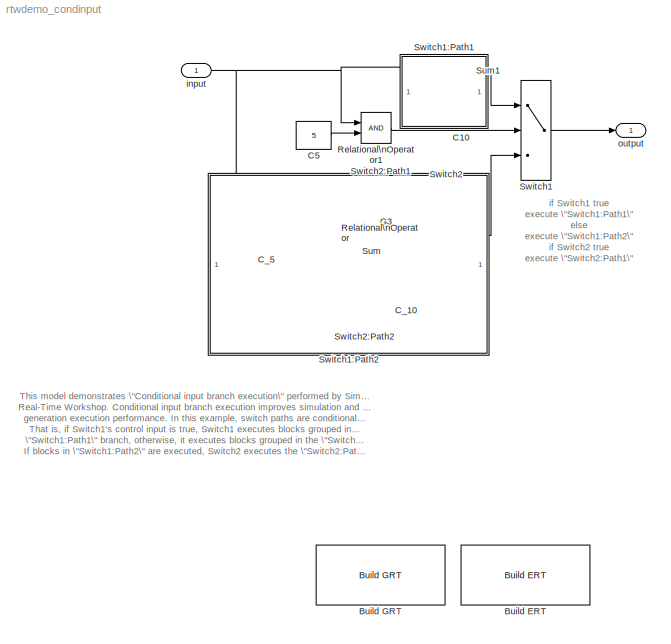
MODEL rtwdemo_condinput
KIND model
BLOCK [Constant]   C10
  Value = 10
BLOCK [Gain]   G3
  Gain = 3
BLOCK [Constant]  C_10
  Value = -10
BLOCK [Sum]  Sum
  IconShape = round
  Inputs = |++
  Ports = [2, 1]
BLOCK [Sum]  Sum1
  IconShape = round
  Inputs = |++
  Ports = [2, 1]
BLOCK [Switch]  Switch2
  Threshold = 0.5
BLOCK [SubSystem]  Switch2:Path1
  AttributesFormatString = \\n
  MaskDisplay = disp(' ')
  MaskIconFrame = on
  MaskIconOpaque = on
  MaskIconRotate = none
  MaskIconUnits = autoscale
  MinAlgLoopOccurrences = off
  OpenFcn = disp('');
  Ports = []
  PropExecContextAcrossSSBoundary = on
  RTWSystemCode = Auto
  TreatAsAtomicUnit = off
BLOCK [SubSystem]  Switch2:Path2
  AttributesFormatString = \\n
  MaskDisplay = disp(' ')
  MaskIconFrame = on
  MaskIconOpaque = on
  MaskIconRotate = none
  MaskIconUnits = autoscale
  MinAlgLoopOccurrences = off
  OpenFcn = disp('');
  Ports = []
  PropExecContextAcrossSSBoundary = on
  RTWSystemCode = Auto
  TreatAsAtomicUnit = off
BLOCK [Reference] Build ERT  REF=rtwdemowidgets/Build ERT
  Ports = []
  ShowPortLabels = on
  SourceBlock = rtwdemowidgets/Build ERT
  attrib_overrides = {}
BLOCK [Reference] Build GRT  REF=rtwdemowidgets/Build GRT
  Ports = []
  ShowPortLabels = on
  SourceBlock = rtwdemowidgets/Build GRT
  attrib_overrides = {}
BLOCK [Constant] C5
  Value = 5
BLOCK [Constant] C_5
  Value = -5
BLOCK [RelationalOperator] Relational\nOperator
BLOCK [RelationalOperator] Relational\nOperator1
BLOCK [Switch] Switch1
  Threshold = 0.5
BLOCK [SubSystem] Switch1:Path1
  AttributesFormatString = \\n
  MaskDisplay = disp(' ')
  MaskIconFrame = on
  MaskIconOpaque = on
  MaskIconRotate = none
  MaskIconUnits = autoscale
  MinAlgLoopOccurrences = off
  OpenFcn = disp('');
  Ports = []
  PropExecContextAcrossSSBoundary = on
  RTWSystemCode = Auto
  TreatAsAtomicUnit = off
BLOCK [SubSystem] Switch1:Path2
  AttributesFormatString = \\n
  MaskDisplay = disp(' ')
  MaskIconFrame = on
  MaskIconOpaque = on
  MaskIconRotate = none
  MaskIconUnits = autoscale
  MinAlgLoopOccurrences = off
  OpenFcn = disp('');
  Ports = []
  PropExecContextAcrossSSBoundary = on
  RTWSystemCode = Auto
  TreatAsAtomicUnit = off
BLOCK [Inport] input
  IconDisplay = Port number
  LatchInput = off
  Port = 1
BLOCK [Outport] output
  BusOutputAsStruct = off
  IconDisplay = Port number
ANNOTATION (root): if Switch1 true\n execute \"Switch1:Path1\"\n else\n execute \"Switch1:Path2\"\n if Switch2 true\n execute \"Switch2:Path1\" \n else\n execute \"Switch2:Path2\" \n end\n end\n
ANNOTATION (root): This model demonstrates \"Conditional input branch execution\" performed by Simulink and\nReal-Time Workshop. Conditional input branch execution improves simulation and code\ngeneration execution performance. In this example, switch paths are conditionally executed. \nThat is, if Switch1's control input is true, Switch1 executes blocks grouped in the\n\"Switch1:Path1\" branch, otherwise, it execut...<+280ch>
LINE   C10:1 ->  Sum1:2
LINE   G3:1 ->  Switch2:1
LINE  C_10:1 ->  Sum:2
LINE  Sum1:1 -> Switch1:1
LINE  Sum:1 ->  Switch2:3
LINE  Switch2:1 -> Switch1:3
LINE C5:1 -> Relational\nOperator1:2
LINE C_5:1 -> Relational\nOperator:2
LINE Relational\nOperator1:1 -> Switch1:2
LINE Relational\nOperator:1 ->  Switch2:2
LINE Switch1:1 -> output:1
NET input:1 ->   G3:1,  Sum1:1,  Sum:1, Relational\nOperator1:1, Relational\nOperator:1
note: NET lines group one-source signal fan-out (src -> all destinations, sorted); 1:1 wires keep LINE
